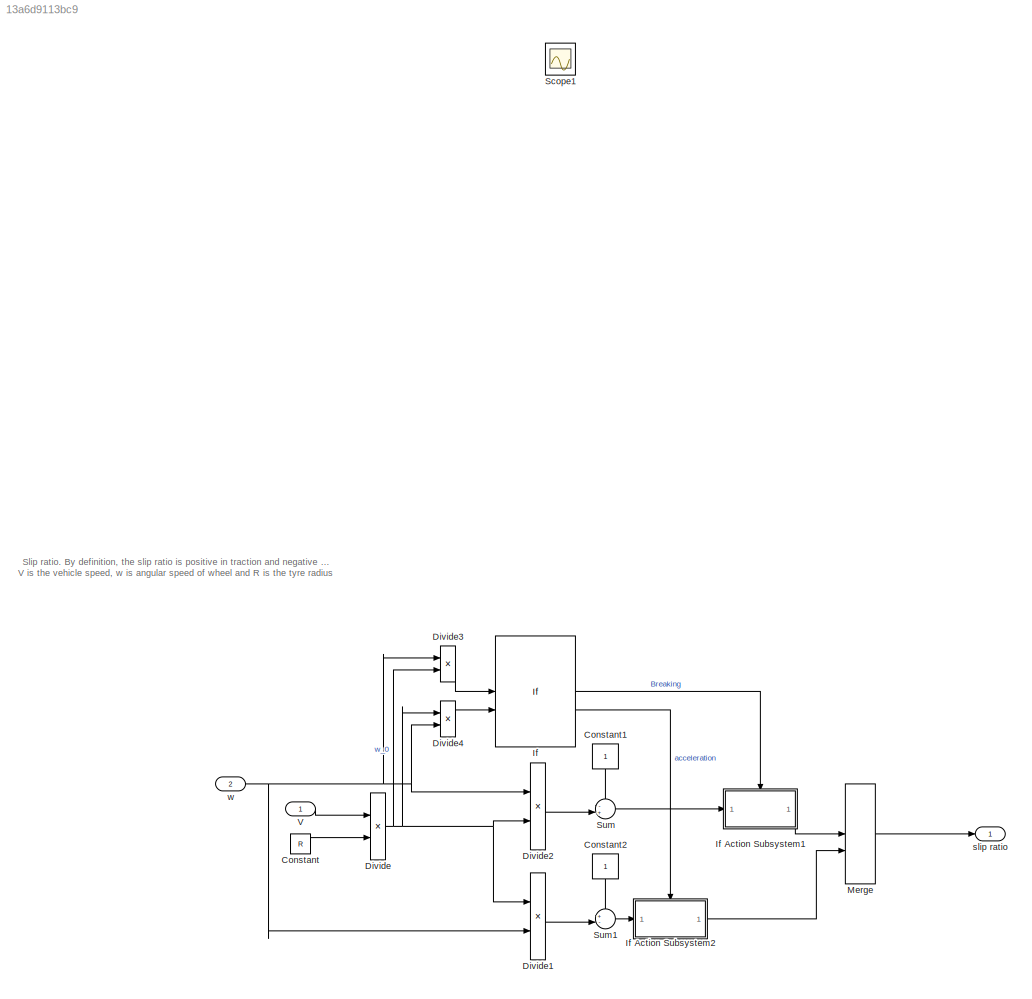
MODEL slx_13a6d9113bc9
KIND model
CONFIG AbsTol = auto
CONFIG EnableMultiTasking = off
CONFIG FixedStep = auto
CONFIG MaxStep = auto
CONFIG MinStep = auto
CONFIG RelTol = 1e-3
CONFIG SampleTimeConstraint = Unconstrained
CONFIG SolverName = VariableStepAuto
CONFIG StartTime = 0.0
CONFIG StopTime = 10.0
BLOCK [Constant] Constant
  Value = R
BLOCK [Constant] Constant1
  NameLocation = left
BLOCK [Constant] Constant2
  NameLocation = left
BLOCK [Product] Divide
  Inputs = */
BLOCK [Product] Divide1
  Inputs = */
BLOCK [Product] Divide2
  Inputs = */
BLOCK [Product] Divide3
  Inputs = */
BLOCK [Product] Divide4
  Inputs = */
BLOCK [If] If
  ElseIfExpressions = u2 < 1
  IfExpression = u1 < 1
  NumInputs = 2
  ShowElse = off
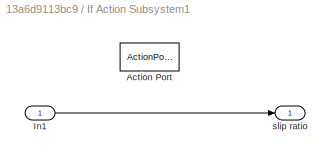
BLOCK [SubSystem] If Action Subsystem1
  TreatAsAtomicUnit = on
BLOCK [ActionPort] If Action Subsystem1/Action Port
  ActionPortLabel = if(u1 < 1)
BLOCK [Inport] If Action Subsystem1/In1
BLOCK [Outport] If Action Subsystem1/slip ratio
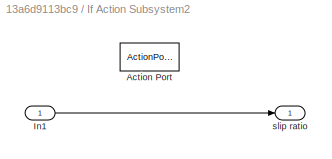
BLOCK [SubSystem] If Action Subsystem2
  TreatAsAtomicUnit = on
BLOCK [ActionPort] If Action Subsystem2/Action Port
  ActionPortLabel = elseif(u2 < 1)
BLOCK [Inport] If Action Subsystem2/In1
BLOCK [Outport] If Action Subsystem2/slip ratio
BLOCK [Merge] Merge
BLOCK [Scope] Scope1
  Commented = on
  Floating = off
  NumInputPorts = 1
  ScopeSpecificationString = Simulink.scopes.TimeScopeBlockCfg('CurrentConfiguration', extmgr.ConfigurationSet(extmgr.Configuration('Core','General UI',true),extmgr.Configuration('Core','Source UI',true),extmgr.Configuration('Sources','WiredSimulink',true,'DataLoggingVariableName','ScopeData1'),extmgr.Configuration('Visuals','Time Domain',true,'SerializedDisplays',{struct('MinYLimReal','-1.00000','MaxYLimReal','1.00000','YLab...<+1492ch>
BLOCK [Sum] Sum
  Inputs = -+|
BLOCK [Sum] Sum1
  Inputs = +-|
BLOCK [Inport] V
BLOCK [Outport] slip ratio
BLOCK [Inport] w
  Port = 2
ANNOTATION (root): Slip ratio. By definition, the slip ratio is positive in traction and negative in braking V is the vehicle speed, w is angular speed of wheel and R is the tyre radius
LINE Constant1:1 -> Sum:1
LINE Constant2:1 -> Sum1:1
LINE Constant:1 -> Divide:2
LINE Divide1:1 -> Sum1:2
LINE Divide2:1 -> Sum:2
LINE Divide3:1 -> If:1
LINE Divide4:1 -> If:2
NET Divide:1 -> Divide1:1, Divide2:2, Divide3:2, Divide4:1
LINE If Action Subsystem1/In1:1 -> If Action Subsystem1/slip ratio:1
LINE If Action Subsystem1:1 -> Merge:1
LINE If Action Subsystem2/In1:1 -> If Action Subsystem2/slip ratio:1
LINE If Action Subsystem2:1 -> Merge:2
LINE If:1 -> If Action Subsystem1:ifaction
LINE If:2 -> If Action Subsystem2:ifaction
LINE Merge:1 -> slip ratio:1
LINE Sum1:1 -> If Action Subsystem2:1
LINE Sum:1 -> If Action Subsystem1:1
LINE V:1 -> Divide:1
NET w:1 -> Divide1:2, Divide2:1, Divide3:1, Divide4:2
note: NET lines group one-source signal fan-out (src -> all destinations, sorted); 1:1 wires keep LINE
